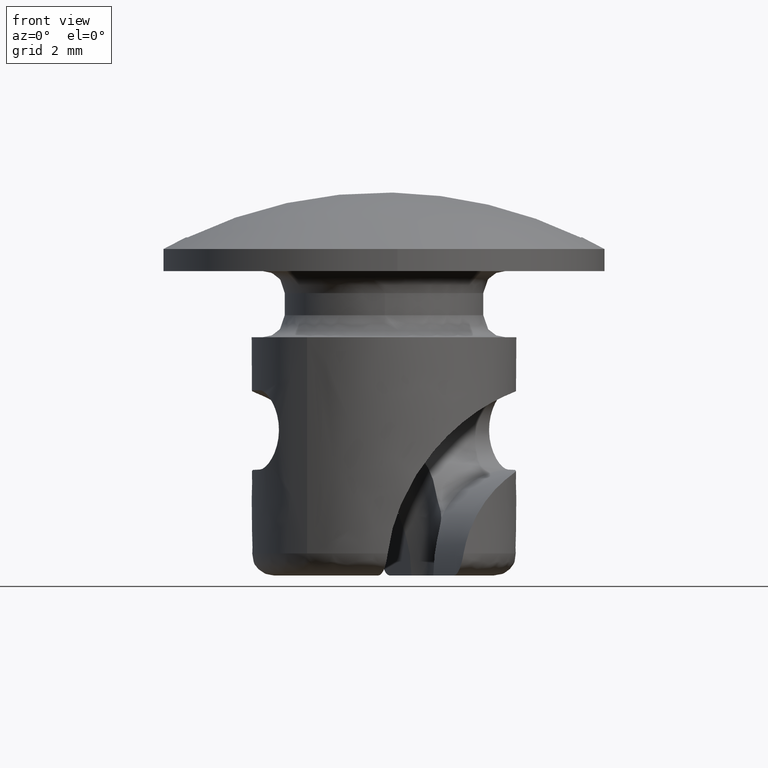
[diagram: clean part render]
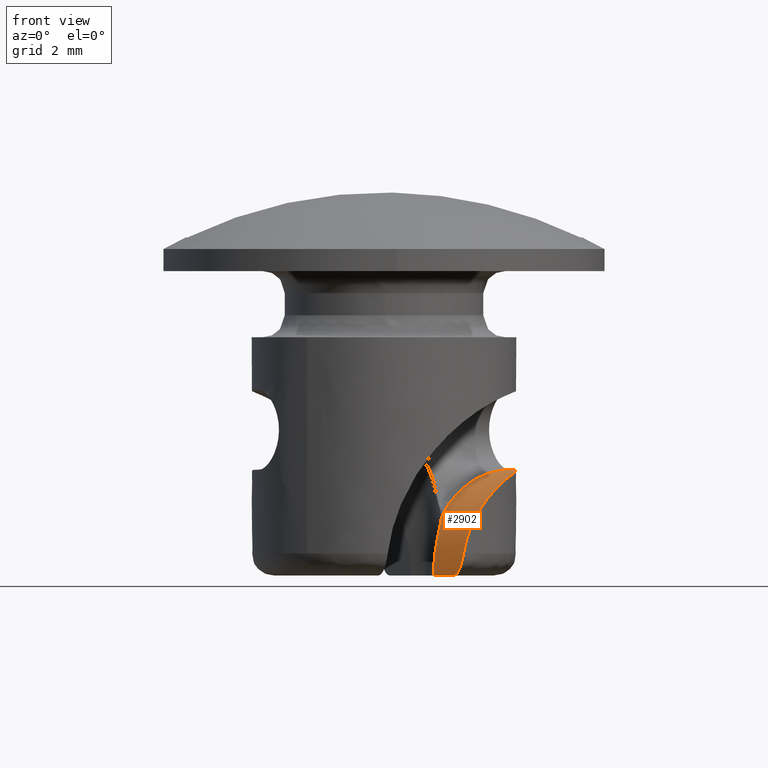
[diagram: same view with one face highlighted and labeled with its STEP entity id]
A machine part, front view. The second image highlights one B-rep face of the part: STEP entity #2902.
In plain terms, the highlighted face is a freeform B-spline surface patch.
Its self-contained STEP definition (entity closure, byte-faithful):
#959=CARTESIAN_POINT('',(1.118612934544240,-0.662348173297480,-6.900000000000000));
#960=VERTEX_POINT('',#959);
#986=CARTESIAN_POINT('',(1.582082869889310,-1.935720484161595,-6.900000000000000));
#987=VERTEX_POINT('',#986);
#1012=CARTESIAN_POINT('',(1.118612934544240,-0.662348173297480,-6.900000000000000));
#1013=CARTESIAN_POINT('',(1.582082869889310,-1.935720484161595,-6.900000000000000));
#1014=QUASI_UNIFORM_CURVE('',1,(#1012,#1013),.UNSPECIFIED.,.F.,.U.);
#1015=EDGE_CURVE('',#960,#987,#1014,.T.);
#1541=CARTESIAN_POINT('',(2.819077636768695,1.026061049781646,-4.500000000000000));
#1542=VERTEX_POINT('',#1541);
#1543=CARTESIAN_POINT('',(1.299015183510924,-0.050592025143847,-5.595379736381680));
#1544=VERTEX_POINT('',#1543);
#1545=CARTESIAN_POINT('',(2.819077636768695,1.026061049781646,-4.500000000000000));
#1546=CARTESIAN_POINT('',(2.790256848958313,1.029818055686179,-4.502659150590300));
#1547=CARTESIAN_POINT('',(2.730877654706494,1.037558579119413,-4.508137773190251));
#1548=CARTESIAN_POINT('',(2.638164562324926,1.030334792733077,-4.521286703567558));
#1549=CARTESIAN_POINT('',(2.541190195662298,1.010257504845543,-4.539483769866625));
#1550=CARTESIAN_POINT('',(2.440050505416949,0.975932626002106,-4.564212586743490));
#1551=CARTESIAN_POINT('',(2.335117649512330,0.928293178365436,-4.596658662360955));
#1552=CARTESIAN_POINT('',(2.200665670411227,0.851187024913191,-4.648433058850517));
#1553=CARTESIAN_POINT('',(2.050620498692135,0.751102988895336,-4.723181055269254));
#1554=CARTESIAN_POINT('',(1.871163445021753,0.598367536520967,-4.842338658330814));
#1555=CARTESIAN_POINT('',(1.694070867946315,0.419606646974993,-4.998215079073915));
#1556=CARTESIAN_POINT('',(1.530930965943418,0.275280211962370,-5.181769202601523));
#1557=CARTESIAN_POINT('',(1.399373464729142,0.113216813714396,-5.378253685896038));
#1558=CARTESIAN_POINT('',(1.338826947945065,0.014390344279900,-5.509246623403649));
#1559=CARTESIAN_POINT('',(1.299015183510924,-0.050592025143847,-5.595379736381680));
#1560=B_SPLINE_CURVE_WITH_KNOTS('',3,(#1545,#1546,#1547,#1548,#1549,#1550,#1551,#1552,#1553,#1554,#1555,#1556,#1557,#1558,#1559),.UNSPECIFIED.,.F.,.U.,(4,1,1,1,1,1,1,1,1,1,1,1,4),(0.0,0.038182471231113,0.078666981317908,0.122355525961173,0.169968287151098,0.222062883537435,0.279065490820110,0.384042307492955,0.477273855254133,0.624758714971286,0.770943246316132,0.849385992719741,1.0),.UNSPECIFIED.);
#1561=EDGE_CURVE('',#1542,#1544,#1560,.T.);
#2612=CARTESIAN_POINT('',(0.723215780176851,0.427930296514695,-6.963000088966724));
#2613=CARTESIAN_POINT('',(0.767353100442734,0.306507035690077,-6.962961414379238));
#2614=CARTESIAN_POINT('',(0.833569689553597,0.124376005711198,-6.962911631285711));
#2615=CARTESIAN_POINT('',(0.921886182388368,-0.118455282935087,-6.962866147446808));
#2616=CARTESIAN_POINT('',(0.988137451881796,-0.300573690278365,-6.962842289492553));
#2617=CARTESIAN_POINT('',(1.054396525113269,-0.482689257291335,-6.962823799496540));
#2618=CARTESIAN_POINT('',(1.142760413537211,-0.725503295342127,-6.962814619818021));
#2619=CARTESIAN_POINT('',(1.297417448291492,-1.150420498803629,-6.962815086069760));
#2620=CARTESIAN_POINT('',(1.518361285765959,-1.757443176562691,-6.962818838650962));
#2621=CARTESIAN_POINT('',(1.695112523481428,-2.243062713600962,-6.962818436353449));
#2622=CARTESIAN_POINT('',(1.783475676413440,-2.485877019349105,-6.962808972181126));
#2623=CARTESIAN_POINT('',(0.714358774743333,0.424706607966891,-6.651569025351446));
#2624=CARTESIAN_POINT('',(0.758496391042441,0.303283454889630,-6.651530525747465));
#2625=CARTESIAN_POINT('',(0.824705798219483,0.121149810898827,-6.651474720588428));
#2626=CARTESIAN_POINT('',(0.912993273144962,-0.121692039409927,-6.651408144132688));
#2627=CARTESIAN_POINT('',(0.979220443092128,-0.303819218276703,-6.651368874265088));
#2628=CARTESIAN_POINT('',(1.045449264876972,-0.485945795923323,-6.651337740809797));
#2629=CARTESIAN_POINT('',(1.133775147044877,-0.728773667129490,-6.651305109942054));
#2630=CARTESIAN_POINT('',(1.288552811371262,-1.153646964987338,-6.651371123654212));
#2631=CARTESIAN_POINT('',(1.509404729496203,-1.760703098676468,-6.651314658633992));
#2632=CARTESIAN_POINT('',(1.686174734703155,-2.246315804901794,-6.651324850591866));
#2633=CARTESIAN_POINT('',(1.774537717578183,-2.489130172545660,-6.651315838675087));
#2634=CARTESIAN_POINT('',(0.762639288318929,0.442279289824658,-6.341294494070207));
#2635=CARTESIAN_POINT('',(0.806739242079915,0.320842428695196,-6.341227666221626));
#2636=CARTESIAN_POINT('',(0.872917125021319,0.138697310813113,-6.341150377246613));
#2637=CARTESIAN_POINT('',(0.961221060545811,-0.104138548323463,-6.341096574130842));
#2638=CARTESIAN_POINT('',(1.027445688220658,-0.286266652502324,-6.341049444924293));
#2639=CARTESIAN_POINT('',(1.093623799811128,-0.468411687162895,-6.340964815146297));
#2640=CARTESIAN_POINT('',(1.181948421178716,-0.711240017263163,-6.340921210847585));
#2641=CARTESIAN_POINT('',(1.336630668357887,-1.136148044146193,-6.340955757140385));
#2642=CARTESIAN_POINT('',(1.557603641207323,-1.743160117488750,-6.340974285558731));
#2643=CARTESIAN_POINT('',(1.734316627419611,-2.228793576945118,-6.340948309849776));
#2644=CARTESIAN_POINT('',(1.822681248925021,-2.471607348175893,-6.340939839557488));
#2645=CARTESIAN_POINT('',(0.891192633539012,0.489068913008078,-5.976675395024423));
#2646=CARTESIAN_POINT('',(0.935334030304023,0.367647135908818,-5.976637308693097));
#2647=CARTESIAN_POINT('',(1.001437069403537,0.185474777077435,-5.976496467883992));
#2648=CARTESIAN_POINT('',(1.089497114146866,-0.057449851104622,-5.976255991007144));
#2649=CARTESIAN_POINT('',(1.155572892064928,-0.239632132201392,-5.976106322414501));
#2650=CARTESIAN_POINT('',(1.221806915525140,-0.421756816591713,-5.976070787375897));
#2651=CARTESIAN_POINT('',(1.310064340263310,-0.664609604281664,-5.975981111876385));
#2652=CARTESIAN_POINT('',(1.464931694334634,-1.089450257719704,-5.976140342950012));
#2653=CARTESIAN_POINT('',(1.685785899019797,-1.696505559168406,-5.976077141985007));
#2654=CARTESIAN_POINT('',(1.862516598313837,-2.182132571585849,-5.976060163650645));
#2655=CARTESIAN_POINT('',(1.950865794432900,-2.424951957201947,-5.976039868211682));
#2656=CARTESIAN_POINT('',(0.934688864633095,0.504900257259034,-5.869555422640093));
#2657=CARTESIAN_POINT('',(0.978856014653865,0.383487853584718,-5.869537261650336));
#2658=CARTESIAN_POINT('',(1.045005648053640,0.201332453703317,-5.869419172091754));
#2659=CARTESIAN_POINT('',(1.132740563610828,-0.041710511905738,-5.868950986213295));
#2660=CARTESIAN_POINT('',(1.199112009306743,-0.223785178658522,-5.869011851335485));
#2661=CARTESIAN_POINT('',(1.264998654331737,-0.406036298545782,-5.868719372597998));
#2662=CARTESIAN_POINT('',(1.353516544657882,-0.648794284449805,-5.868825693810528));
#2663=CARTESIAN_POINT('',(1.508305595499624,-1.073663437952156,-5.868927343971900));
#2664=CARTESIAN_POINT('',(1.729169681062450,-1.680715143053040,-5.868871597945427));
#2665=CARTESIAN_POINT('',(1.905889822997747,-2.166345998037446,-5.868845502806642));
#2666=CARTESIAN_POINT('',(1.994241441567765,-2.409164501952898,-5.868827001153242));
#2667=CARTESIAN_POINT('',(1.002056422109307,0.529420059709161,-5.731901205569793));
#2668=CARTESIAN_POINT('',(1.046295154392273,0.408033709865408,-5.731936994065489));
#2669=CARTESIAN_POINT('',(1.112664144471065,0.225958149340474,-5.731986320468050));
#2670=CARTESIAN_POINT('',(1.200150697897297,-0.017175212753407,-5.731267633932900));
#2671=CARTESIAN_POINT('',(1.265865015973458,-0.199489054563510,-5.730906526313213));
#2672=CARTESIAN_POINT('',(1.332443460059082,-0.381488380012359,-5.731117646383797));
#2673=CARTESIAN_POINT('',(1.420815609484502,-0.624299411302450,-5.731116355277986));
#2674=CARTESIAN_POINT('',(1.575607997024533,-1.049167350345112,-5.731219490332627));
#2675=CARTESIAN_POINT('',(1.796430064829577,-1.656234348669602,-5.731130304396111));
#2676=CARTESIAN_POINT('',(1.973132758990370,-2.141871554128923,-5.731095639754056));
#2677=CARTESIAN_POINT('',(2.061473803867069,-2.384693906556644,-5.731069542667221));
#2678=CARTESIAN_POINT('',(1.057112992092945,0.549459026092305,-5.631381086577336));
#2679=CARTESIAN_POINT('',(1.100972596488553,0.427934684888176,-5.631148856901777));
#2680=CARTESIAN_POINT('',(1.169585180819688,0.246675726447490,-5.632826329204290));
#2681=CARTESIAN_POINT('',(1.252043365618355,0.001712186594262,-5.628465637176253));
#2682=CARTESIAN_POINT('',(1.322529832682342,-0.178864733842589,-5.631563116176636));
#2683=CARTESIAN_POINT('',(1.387133515696377,-0.361582814032972,-5.630327383980771));
#2684=CARTESIAN_POINT('',(1.476096161557222,-0.604178922050102,-5.630757531069753));
#2685=CARTESIAN_POINT('',(1.630621970810068,-1.029143887720776,-5.630664039940360));
#2686=CARTESIAN_POINT('',(1.851519795711883,-1.636183312698142,-5.630629101496442));
#2687=CARTESIAN_POINT('',(2.028163244509765,-2.121842081720838,-5.630551819710695));
#2688=CARTESIAN_POINT('',(2.116516862439203,-2.364659857928475,-5.630534107038884));
#2689=CARTESIAN_POINT('',(1.106644375397713,0.567486987609884,-5.549994727049720));
#2690=CARTESIAN_POINT('',(1.150966821783604,0.446131107228628,-5.550076171037997));
#2691=CARTESIAN_POINT('',(1.217367724531755,0.264067161973382,-5.550277673160937));
#2692=CARTESIAN_POINT('',(1.307218623745502,0.021794351958359,-5.551053454753911));
#2693=CARTESIAN_POINT('',(1.370559412158261,-0.161383384590348,-5.549163182137199));
#2694=CARTESIAN_POINT('',(1.437384487144267,-0.343292943671199,-5.549452288706663));
#2695=CARTESIAN_POINT('',(1.525665580308193,-0.586137116752788,-5.549406763127801));
#2696=CARTESIAN_POINT('',(1.680322141378692,-1.011054492621205,-5.549398614818047));
#2697=CARTESIAN_POINT('',(1.901138832852449,-1.618123447771590,-5.549308476189890));
#2698=CARTESIAN_POINT('',(2.077806884457286,-2.103773262098747,-5.549244253803137));
#2699=CARTESIAN_POINT('',(2.166154592802766,-2.346593189220514,-5.549223797343789));
#2700=CARTESIAN_POINT('',(1.148412396581831,0.582689314464749,-5.486402169295650));
#2701=CARTESIAN_POINT('',(1.192621179707488,0.461292064011738,-5.486414594988848));
#2702=CARTESIAN_POINT('',(1.259273096704549,0.279319480533971,-5.486725526118471));
#2703=CARTESIAN_POINT('',(1.348366554173846,0.036770984081184,-5.487248609508454));
#2704=CARTESIAN_POINT('',(1.412653346048070,-0.146062435130494,-5.485749287715687));
#2705=CARTESIAN_POINT('',(1.479388586309721,-0.328004691399381,-5.486055769204889));
#2706=CARTESIAN_POINT('',(1.567628521685654,-0.570863844700957,-5.485957580343769));
#2707=CARTESIAN_POINT('',(1.722240390396617,-0.995797487269071,-5.485921330668750));
#2708=CARTESIAN_POINT('',(1.943051257488451,-1.602868562322561,-5.485824817905106));
#2709=CARTESIAN_POINT('',(2.119733129155283,-2.088513346555072,-5.485769905916111));
#2710=CARTESIAN_POINT('',(2.208074130959322,-2.331335714659970,-5.485744697334344));
#2711=CARTESIAN_POINT('',(1.191606177752543,0.598410575870935,-5.423860413595393));
#2712=CARTESIAN_POINT('',(1.235737372627482,0.476985085584816,-5.423815270208091));
#2713=CARTESIAN_POINT('',(1.302337289232493,0.294993575499226,-5.424070816043749));
#2714=CARTESIAN_POINT('',(1.390566703983755,0.052130593000805,-5.424010295556441));
#2715=CARTESIAN_POINT('',(1.456447069490158,-0.130122812445871,-5.423636077674255));
#2716=CARTESIAN_POINT('',(1.522760617492944,-0.312218552250001,-5.423658679390648));
#2717=CARTESIAN_POINT('',(1.611051518129627,-0.555059155700992,-5.423589622285318));
#2718=CARTESIAN_POINT('',(1.765603844643455,-0.980014469871372,-5.423510161428208));
#2719=CARTESIAN_POINT('',(1.986415465214699,-1.587085270680594,-5.423413188127491));
#2720=CARTESIAN_POINT('',(2.163118222875966,-2.072722453027625,-5.423374046700616));
#2721=CARTESIAN_POINT('',(2.251447280912423,-2.315549168311377,-5.423339437401237));
#2722=CARTESIAN_POINT('',(1.248278410817839,0.619037595926684,-5.347738686551672));
#2723=CARTESIAN_POINT('',(1.292400721082958,0.497608871904834,-5.347684292902009));
#2724=CARTESIAN_POINT('',(1.358397628824796,0.315397884391910,-5.347465997959616));
#2725=CARTESIAN_POINT('',(1.446691358965143,0.072558310796734,-5.347395283875991));
#2726=CARTESIAN_POINT('',(1.513413152385867,-0.109388839725344,-5.347752124728202));
#2727=CARTESIAN_POINT('',(1.579667749021291,-0.291506036087141,-5.347717280699427));
#2728=CARTESIAN_POINT('',(1.667978971308804,-0.534339243057059,-5.347666285903876));
#2729=CARTESIAN_POINT('',(1.822504455186489,-0.959304327154688,-5.347564566804367));
#2730=CARTESIAN_POINT('',(2.043315302222614,-1.566375409507862,-5.347466287545241));
#2731=CARTESIAN_POINT('',(2.220028082380455,-2.052008943961967,-5.347437329805770));
#2732=CARTESIAN_POINT('',(2.308355057455841,-2.294836417382069,-5.347399279404824));
#2733=CARTESIAN_POINT('',(1.296472714294919,0.636578899853232,-5.289202869685435));
#2734=CARTESIAN_POINT('',(1.340696259966562,0.515187022531218,-5.289251076360805));
#2735=CARTESIAN_POINT('',(1.406078750951330,0.332752405454304,-5.288450434764952));
#2736=CARTESIAN_POINT('',(1.495168783333194,0.090202662370788,-5.289073340818410));
#2737=CARTESIAN_POINT('',(1.561556034325044,-0.091866251720795,-5.289169366485361));
#2738=CARTESIAN_POINT('',(1.627976788369581,-0.273922971690102,-5.289271741114765));
#2739=CARTESIAN_POINT('',(1.716294151351548,-0.516753943628492,-5.289223904361048));
#2740=CARTESIAN_POINT('',(1.870829439162969,-0.941715459383620,-5.289129527023690));
#2741=CARTESIAN_POINT('',(2.091643235019458,-1.548785468453224,-5.289033680362956));
#2742=CARTESIAN_POINT('',(2.268345425608451,-2.034422857197817,-5.288995996499334));
#2743=CARTESIAN_POINT('',(2.356682605061465,-2.277246616525665,-5.288966281934946));
#2744=CARTESIAN_POINT('',(1.420523632257974,0.681729772412105,-5.146030011921718));
#2745=CARTESIAN_POINT('',(1.464542479218015,0.560263390801108,-5.145879261118131));
#2746=CARTESIAN_POINT('',(1.531504861986401,0.378403807700162,-5.146629044155662));
#2747=CARTESIAN_POINT('',(1.619402582348415,0.135420098234595,-5.146064423955271));
#2748=CARTESIAN_POINT('',(1.685649766495679,-0.046699796054100,-5.146015678795651));
#2749=CARTESIAN_POINT('',(1.752078968433160,-0.228753441239729,-5.146131350117342));
#2750=CARTESIAN_POINT('',(1.840491854404400,-0.471549645629552,-5.146157357286369));
#2751=CARTESIAN_POINT('',(1.995058636949824,-0.896499698231126,-5.146086283329450));
#2752=CARTESIAN_POINT('',(2.215873610435756,-1.503569278678369,-5.145991353257655));
#2753=CARTESIAN_POINT('',(2.392574213051591,-1.989207245398325,-5.145952491929022));
#2754=CARTESIAN_POINT('',(2.480918159052624,-2.232028541902418,-5.145928119658096));
#2755=CARTESIAN_POINT('',(1.639127620773566,0.761295171752950,-4.938680155899275));
#2756=CARTESIAN_POINT('',(1.683309169316188,0.639888008715590,-4.938657330613875));
#2757=CARTESIAN_POINT('',(1.749277575458072,0.457666647461558,-4.938271820207460));
#2758=CARTESIAN_POINT('',(1.838057044577999,0.215003868517513,-4.938768157953743));
#2759=CARTESIAN_POINT('',(1.904446819564490,0.032935873085478,-4.938868447570859));
#2760=CARTESIAN_POINT('',(1.970741960308108,-0.149166566417667,-4.938880918681314));
#2761=CARTESIAN_POINT('',(2.059153464540954,-0.391963273719481,-4.938908821716672));
#2762=CARTESIAN_POINT('',(2.213794849437014,-0.816886173267441,-4.938895735218535));
#2763=CARTESIAN_POINT('',(2.434632036143075,-1.423947668758221,-4.938818866202960));
#2764=CARTESIAN_POINT('',(2.611328149133208,-1.909587269569410,-4.938776994937362));
#2765=CARTESIAN_POINT('',(2.699669554942389,-2.152409490628361,-4.938749990119321));
#2766=CARTESIAN_POINT('',(1.891341656042736,0.853093636052816,-4.780265545665011));
#2767=CARTESIAN_POINT('',(1.935545768978867,0.731694685788666,-4.780283280516942));
#2768=CARTESIAN_POINT('',(2.001879804674434,0.549606402899977,-4.780328438946061));
#2769=CARTESIAN_POINT('',(2.090193883423913,0.306774235597902,-4.780234135783817));
#2770=CARTESIAN_POINT('',(2.156503809758808,0.124677177613559,-4.780256038841937));
#2771=CARTESIAN_POINT('',(2.222814520675509,-0.057419594806165,-4.780277240985638));
#2772=CARTESIAN_POINT('',(2.311205852685023,-0.300223644201853,-4.780288788360530));
#2773=CARTESIAN_POINT('',(2.465828079070041,-0.725153516882336,-4.780261600030024));
#2774=CARTESIAN_POINT('',(2.686702360118556,-1.332201511127366,-4.780213072920767));
#2775=CARTESIAN_POINT('',(2.863391872540540,-1.817843514350534,-4.780166293629210));
#2776=CARTESIAN_POINT('',(2.951735415636687,-2.060664957500114,-4.780141469478511));
#2777=CARTESIAN_POINT('',(2.289423570740073,0.997983702919103,-4.582618869031785));
#2778=CARTESIAN_POINT('',(2.333618953897898,0.876581575273324,-4.582625427503462));
#2779=CARTESIAN_POINT('',(2.399881017859027,0.694467096797673,-4.582611194884053));
#2780=CARTESIAN_POINT('',(2.488318374895346,0.451679799153233,-4.582672947563037));
#2781=CARTESIAN_POINT('',(2.554608461553865,0.269575520112292,-4.582668867222028));
#2782=CARTESIAN_POINT('',(2.620889411024035,0.087467915404492,-4.582672422545216));
#2783=CARTESIAN_POINT('',(2.709250514346939,-0.155347136340870,-4.582655911517124));
#2784=CARTESIAN_POINT('',(2.863896690950993,-0.580268291848557,-4.582639018945286));
#2785=CARTESIAN_POINT('',(3.084753662052836,-1.187322586403241,-4.582591381157918));
#2786=CARTESIAN_POINT('',(3.261482081897622,-1.672950428472930,-4.582569056085655));
#2787=CARTESIAN_POINT('',(3.349817641262492,-1.915774777465041,-4.582538919993334));
#2788=CARTESIAN_POINT('',(2.576429144320585,1.102445260231235,-4.507241724591176));
#2789=CARTESIAN_POINT('',(2.620615325069437,0.981039783180216,-4.507221557739221));
#2790=CARTESIAN_POINT('',(2.686914977916711,0.798938985949616,-4.507224862718772));
#2791=CARTESIAN_POINT('',(2.775275745445095,0.556123811984961,-4.507194292578171));
#2792=CARTESIAN_POINT('',(2.841557762065137,0.374016595688215,-4.507215130223702));
#2793=CARTESIAN_POINT('',(2.907834649925320,0.191907512674265,-4.507200714419086));
#2794=CARTESIAN_POINT('',(2.996208252796102,-0.050902989604614,-4.507212911953126));
#2795=CARTESIAN_POINT('',(3.150821513362878,-0.475836125578298,-4.507128141257971));
#2796=CARTESIAN_POINT('',(3.371719645274074,-1.082875438813311,-4.507138168839433));
#2797=CARTESIAN_POINT('',(3.548403244885597,-1.568519594124959,-4.507076840890639));
#2798=CARTESIAN_POINT('',(3.636755988710963,-1.811337688480679,-4.507061696484518));
#2799=CARTESIAN_POINT('',(2.868923826257460,1.208904690964448,-4.492233840658487));
#2800=CARTESIAN_POINT('',(2.913117417817120,1.087501911229819,-4.492244428879175));
#2801=CARTESIAN_POINT('',(2.979388872122263,0.905390850562219,-4.492173333610557));
#2802=CARTESIAN_POINT('',(3.067762219904784,0.662580255438740,-4.492200971071418));
#2803=CARTESIAN_POINT('',(3.134041245868424,0.480471950631338,-4.492216820569888));
#2804=CARTESIAN_POINT('',(3.200316087733741,0.298362122935648,-4.492214350025560));
#2805=CARTESIAN_POINT('',(3.288681387839529,0.055548598695381,-4.492208777792284));
#2806=CARTESIAN_POINT('',(3.443304597551917,-0.369380916082964,-4.492170748843954));
#2807=CARTESIAN_POINT('',(3.664192735773569,-0.976423866725992,-4.492132590163150));
#2808=CARTESIAN_POINT('',(3.840883628765935,-1.462065367462290,-4.492089553158396));
#2809=CARTESIAN_POINT('',(3.929233062171867,-1.704884666712971,-4.492069846966195));
#2810=B_SPLINE_SURFACE_WITH_KNOTS('',3,3,((#2612,#2623,#2634,#2645,#2656,#2667,#2678,#2689,#2700,#2711,#2722,#2733,#2744,#2755,#2766,#2777,#2788,#2799),(#2613,#2624,#2635,#2646,#2657,#2668,#2679,#2690,#2701,#2712,#2723,#2734,#2745,#2756,#2767,#2778,#2789,#2800),(#2614,#2625,#2636,#2647,#2658,#2669,#2680,#2691,#2702,#2713,#2724,#2735,#2746,#2757,#2768,#2779,#2790,#2801),(#2615,#2626,#2637,#2648,#2659,#2670,#2681,#2692,#2703,#2714,#2725,#2736,#2747,#2758,#2769,#2780,#2791,#2802),(#2616,#2627,#2638,#2649,#2660,#2671,#2682,#2693,#2704,#2715,#2726,#2737,#2748,#2759,#2770,#2781,#2792,#2803),(#2617,#2628,#2639,#2650,#2661,#2672,#2683,#2694,#2705,#2716,#2727,#2738,#2749,#2760,#2771,#2782,#2793,#2804),(#2618,#2629,#2640,#2651,#2662,#2673,#2684,#2695,#2706,#2717,#2728,#2739,#2750,#2761,#2772,#2783,#2794,#2805),(#2619,#2630,#2641,#2652,#2663,#2674,#2685,#2696,#2707,#2718,#2729,#2740,#2751,#2762,#2773,#2784,#2795,#2806),(#2620,#2631,#2642,#2653,#2664,#2675,#2686,#2697,#2708,#2719,#2730,#2741,#2752,#2763,#2774,#2785,#2796,#2807),(#2621,#2632,#2643,#2654,#2665,#2676,#2687,#2698,#2709,#2720,#2731,#2742,#2753,#2764,#2775,#2786,#2797,#2808),(#2622,#2633,#2644,#2655,#2666,#2677,#2688,#2699,#2710,#2721,#2732,#2743,#2754,#2765,#2776,#2787,#2798,#2809)),.UNSPECIFIED.,.F.,.F.,.U.,(4,1,1,1,1,1,1,1,4),(4,2,1,1,1,1,1,1,1,2,1,2,4),(0.0,0.387589184340592,0.581383776510889,0.775178368681185,0.968972960851481,1.162767553021777,1.550356737362370,2.325535106043555,3.100713474724740),(0.0,1.0,1.250000000000000,1.375000000000000,1.500000000000000,1.625000000000000,1.687500000000000,1.750000000000000,1.875000000000000,2.0,2.500000000000000,3.0,4.0),.UNSPECIFIED.);
#2811=CARTESIAN_POINT('',(1.803708136351050,-2.397214416538710,-6.400000000000000));
#2812=VERTEX_POINT('',#2811);
#2813=CARTESIAN_POINT('',(2.819077636768695,1.026061049781646,-4.500000000000000));
#2814=CARTESIAN_POINT('',(2.886318888333447,0.841317355827720,-4.500000000000042));
#2815=CARTESIAN_POINT('',(2.934468276000204,0.653064396546173,-4.501577904167891));
#2816=CARTESIAN_POINT('',(2.979207986240080,0.365676177710893,-4.508215175440377));
#2817=CARTESIAN_POINT('',(2.989506997383983,0.269040006466312,-4.511181769396406));
#2818=CARTESIAN_POINT('',(2.997882743811527,0.122811674847407,-4.517420307340307));
#2819=CARTESIAN_POINT('',(2.999493992359111,0.073734271748970,-4.519808151726317));
#2820=CARTESIAN_POINT('',(3.000302040735953,-0.024261438218215,-4.525304570877968));
#2821=CARTESIAN_POINT('',(2.999504365021666,-0.073036279992940,-4.528403602621145));
#2822=CARTESIAN_POINT('',(2.989658637906180,-0.315773609508019,-4.545993463106641));
#2823=CARTESIAN_POINT('',(2.963152595788540,-0.506372227242711,-4.566537575698353));
#2824=CARTESIAN_POINT('',(2.907867872741239,-0.739322201974521,-4.607844915142721));
#2825=CARTESIAN_POINT('',(2.895696632359297,-0.785644264178582,-4.616903404123109));
#2826=CARTESIAN_POINT('',(2.869129661526526,-0.877719136080765,-4.636876690993237));
#2827=CARTESIAN_POINT('',(2.854674921146494,-0.923634440225744,-4.647837404424392));
#2828=CARTESIAN_POINT('',(2.808525890742806,-1.058895773621886,-4.683526213482393));
#2829=CARTESIAN_POINT('',(2.774051075122454,-1.145894051446379,-4.711047747879118));
#2830=CARTESIAN_POINT('',(2.698772532625128,-1.313415152065942,-4.775099283944345));
#2831=CARTESIAN_POINT('',(2.657964873001152,-1.393938069944234,-4.811624564716660));
#2832=CARTESIAN_POINT('',(2.592833604454075,-1.509693363518106,-4.874543502094578));
#2833=CARTESIAN_POINT('',(2.570373242150255,-1.547591262285969,-4.896977440788819));
#2834=CARTESIAN_POINT('',(2.524857772266333,-1.620787015277512,-4.944242614372260));
#2835=CARTESIAN_POINT('',(2.501820204165636,-1.656077394008835,-4.969047888232270));
#2836=CARTESIAN_POINT('',(2.432203518366868,-1.758173120292185,-5.047092202441859));
#2837=CARTESIAN_POINT('',(2.385120871110427,-1.821208355269161,-5.103954440802536));
#2838=CARTESIAN_POINT('',(2.314785803358630,-1.908708213778758,-5.197007091862478));
#2839=CARTESIAN_POINT('',(2.291388576587920,-1.936698012049410,-5.229318986542923));
#2840=CARTESIAN_POINT('',(2.244907927467934,-1.990389207161597,-5.296635757912645));
#2841=CARTESIAN_POINT('',(2.221738353091448,-2.016182150149277,-5.331780191619350));
#2842=CARTESIAN_POINT('',(2.108336667020934,-2.138388377570268,-5.512766409542925));
#2843=CARTESIAN_POINT('',(2.026419125641739,-2.213984071282309,-5.672470576608077));
#2844=CARTESIAN_POINT('',(1.941192026105315,-2.287417706514550,-5.890630398012280));
#2845=CARTESIAN_POINT('',(1.924982181169695,-2.301049061259260,-5.935290716761243));
#2846=CARTESIAN_POINT('',(1.894790880787316,-2.325973064811409,-6.025433802800345));
#2847=CARTESIAN_POINT('',(1.880760162211142,-2.337309215005643,-6.071029773100555));
#2848=CARTESIAN_POINT('',(1.841960494817770,-2.368179501805928,-6.209366071017584));
#2849=CARTESIAN_POINT('',(1.820476547398409,-2.384597556223198,-6.303648080650068));
#2850=CARTESIAN_POINT('',(1.803708136351050,-2.397214416538710,-6.400000000000000));
#2851=B_SPLINE_CURVE_WITH_KNOTS('',3,(#2813,#2814,#2815,#2816,#2817,#2818,#2819,#2820,#2821,#2822,#2823,#2824,#2825,#2826,#2827,#2828,#2829,#2830,#2831,#2832,#2833,#2834,#2835,#2836,#2837,#2838,#2839,#2840,#2841,#2842,#2843,#2844,#2845,#2846,#2847,#2848,#2849,#2850),.UNSPECIFIED.,.F.,.U.,(4,2,2,2,2,2,2,2,2,2,2,2,2,2,2,2,2,2,4),(0.0,0.125000000000000,0.187500000000000,0.218750000000000,0.250000000000000,0.374999999999999,0.406249999999999,0.437499999999999,0.499999999999999,0.562499999999999,0.593749999999999,0.624999999999999,0.687499999999999,0.718749999999999,0.749999999999999,0.875000000000000,0.906250000000000,0.937500000000000,1.0),.UNSPECIFIED.);
#2852=EDGE_CURVE('',#1542,#2812,#2851,.T.);
#2853=ORIENTED_EDGE('',*,*,#2852,.F.);
#2854=ORIENTED_EDGE('',*,*,#1561,.T.);
#2855=CARTESIAN_POINT('',(1.118612934544240,-0.662348173297480,-6.900000000000000));
#2856=CARTESIAN_POINT('',(1.118243744532865,-0.662971683316277,-6.772347364722489));
#2857=CARTESIAN_POINT('',(1.124637678574883,-0.652549185598059,-6.647016871401243));
#2858=CARTESIAN_POINT('',(1.142905545071459,-0.619616415186794,-6.462496075061663));
#2859=CARTESIAN_POINT('',(1.150434106641888,-0.605703219905843,-6.401576029524587));
#2860=CARTESIAN_POINT('',(1.167965439951012,-0.571167011835708,-6.281008480702618));
#2861=CARTESIAN_POINT('',(1.178043245925417,-0.550375062430687,-6.221038929980614));
#2862=CARTESIAN_POINT('',(1.199440418028100,-0.502037132308650,-6.105616429158264));
#2863=CARTESIAN_POINT('',(1.210794606911402,-0.474447346491988,-6.049860118864567));
#2864=CARTESIAN_POINT('',(1.227927833162988,-0.427169992770771,-5.969386777687366));
#2865=CARTESIAN_POINT('',(1.233653494303708,-0.410424927516981,-5.943090745346201));
#2866=CARTESIAN_POINT('',(1.244946313768276,-0.374777588670713,-5.891616567274800));
#2867=CARTESIAN_POINT('',(1.250536977364651,-0.355784752346456,-5.866332250747234));
#2868=CARTESIAN_POINT('',(1.266524936775977,-0.296001134385214,-5.793212413295671));
#2869=CARTESIAN_POINT('',(1.276149257780707,-0.252501190449015,-5.748110284869755));
#2870=CARTESIAN_POINT('',(1.287527244732253,-0.181251314203425,-5.686197180401535));
#2871=CARTESIAN_POINT('',(1.290806878583106,-0.156498054204509,-5.666519018986462));
#2872=CARTESIAN_POINT('',(1.296025982268165,-0.104836501529834,-5.629177998505900));
#2873=CARTESIAN_POINT('',(1.297949141800370,-0.077964014392214,-5.611566407497153));
#2874=CARTESIAN_POINT('',(1.299015183510924,-0.050592025143847,-5.595379736381680));
#2875=B_SPLINE_CURVE_WITH_KNOTS('',3,(#2855,#2856,#2857,#2858,#2859,#2860,#2861,#2862,#2863,#2864,#2865,#2866,#2867,#2868,#2869,#2870,#2871,#2872,#2873,#2874),.UNSPECIFIED.,.F.,.U.,(4,2,2,2,2,2,2,2,2,4),(0.0,0.250000000000002,0.375000000000002,0.500000000000002,0.625000000000001,0.687500000000001,0.750000000000001,0.875000000000001,0.937500000000001,1.0),.UNSPECIFIED.);
#2876=EDGE_CURVE('',#960,#1544,#2875,.T.);
#2877=ORIENTED_EDGE('',*,*,#2876,.F.);
#2878=ORIENTED_EDGE('',*,*,#1015,.T.);
#2879=CARTESIAN_POINT('',(1.803708136351065,-2.397214416538698,-6.400000000000003));
#2880=CARTESIAN_POINT('',(1.797961181382962,-2.401538530962386,-6.433022218982507));
#2881=CARTESIAN_POINT('',(1.791695716217514,-2.402168208701101,-6.465802722609940));
#2882=CARTESIAN_POINT('',(1.778037517526581,-2.396064065551755,-6.530863106628079));
#2883=CARTESIAN_POINT('',(1.770557651700599,-2.389159614174988,-6.563437987132878));
#2884=CARTESIAN_POINT('',(1.754914442266162,-2.368478974803008,-6.624957164972686));
#2885=CARTESIAN_POINT('',(1.746691934570640,-2.354739567156615,-6.654246174715331));
#2886=CARTESIAN_POINT('',(1.729105291971186,-2.320515891710429,-6.709813121534572));
#2887=CARTESIAN_POINT('',(1.720049279144283,-2.300641134625547,-6.735106421165415));
#2888=CARTESIAN_POINT('',(1.701102163545424,-2.255946609215761,-6.781028537031795));
#2889=CARTESIAN_POINT('',(1.691120242793111,-2.230869381422584,-6.801767507089904));
#2890=CARTESIAN_POINT('',(1.670751195661759,-2.177921899021083,-6.837102208165819));
#2891=CARTESIAN_POINT('',(1.660292441565392,-2.149896562634396,-6.851925258676308));
#2892=CARTESIAN_POINT('',(1.638551208425731,-2.090911029740942,-6.875992494795030));
#2893=CARTESIAN_POINT('',(1.627459014622204,-2.060467506730855,-6.884988637944606));
#2894=CARTESIAN_POINT('',(1.605040171158138,-1.998850292804600,-6.896962643234382));
#2895=CARTESIAN_POINT('',(1.593574760727075,-1.967294173146281,-6.900000000000073));
#2896=CARTESIAN_POINT('',(1.582082869889264,-1.935720484161601,-6.900000000000071));
#2897=B_SPLINE_CURVE_WITH_KNOTS('',3,(#2879,#2880,#2881,#2882,#2883,#2884,#2885,#2886,#2887,#2888,#2889,#2890,#2891,#2892,#2893,#2894,#2895,#2896),.UNSPECIFIED.,.F.,.U.,(4,2,2,2,2,2,2,2,4),(0.0,0.125000000000000,0.250000000000000,0.375000000000000,0.500000000000000,0.625000000000000,0.750000000000000,0.875000000000000,1.0),.UNSPECIFIED.);
#2898=EDGE_CURVE('',#2812,#987,#2897,.T.);
#2899=ORIENTED_EDGE('',*,*,#2898,.F.);
#2900=EDGE_LOOP('',(#2853,#2854,#2877,#2878,#2899));
#2901=FACE_OUTER_BOUND('',#2900,.T.);
#2902=ADVANCED_FACE('',(#2901),#2810,.T.);